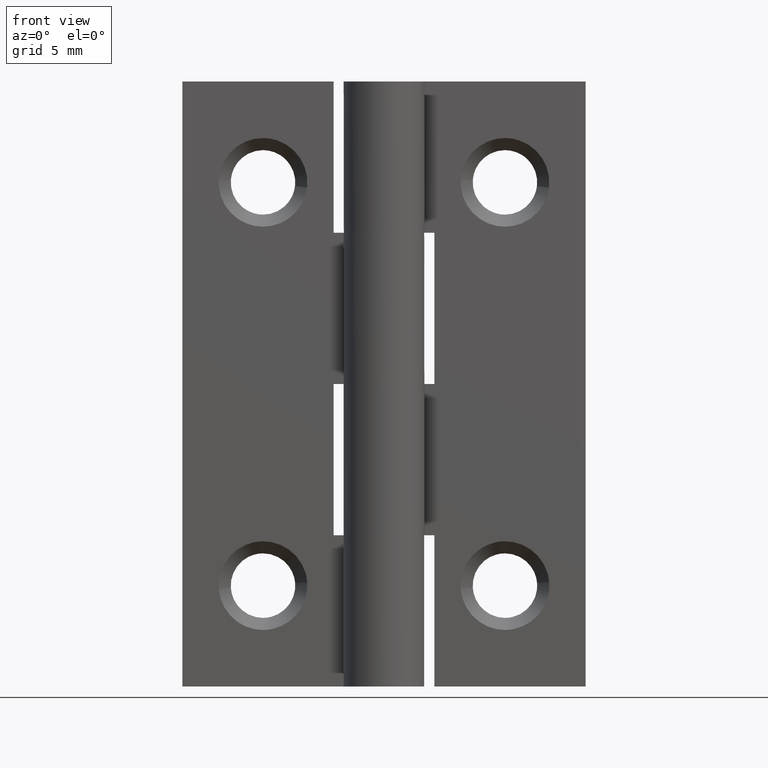
[diagram: clean part render]
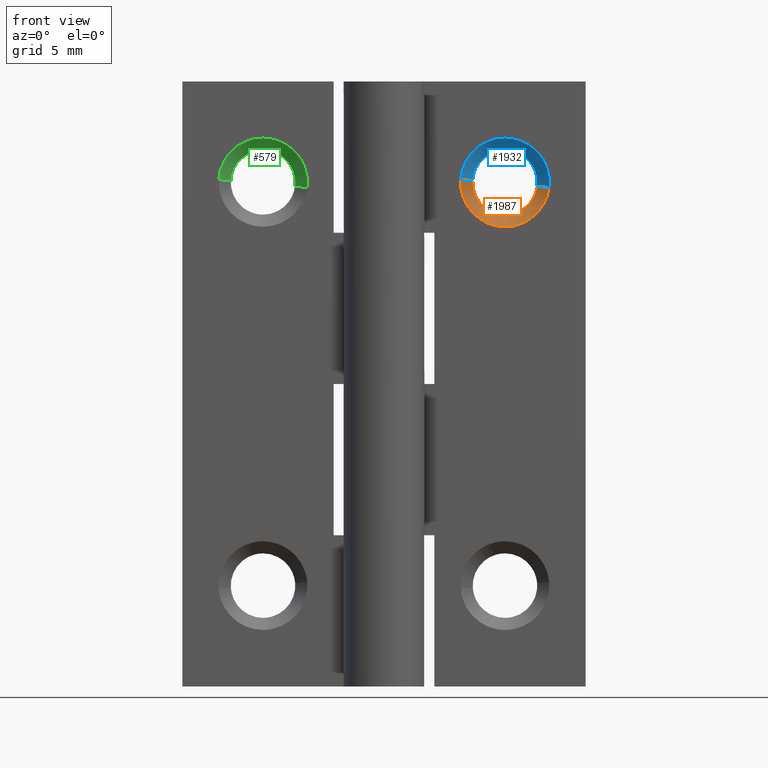
[diagram: same view with three faces highlighted in distinct colors, each labeled with its STEP entity id]
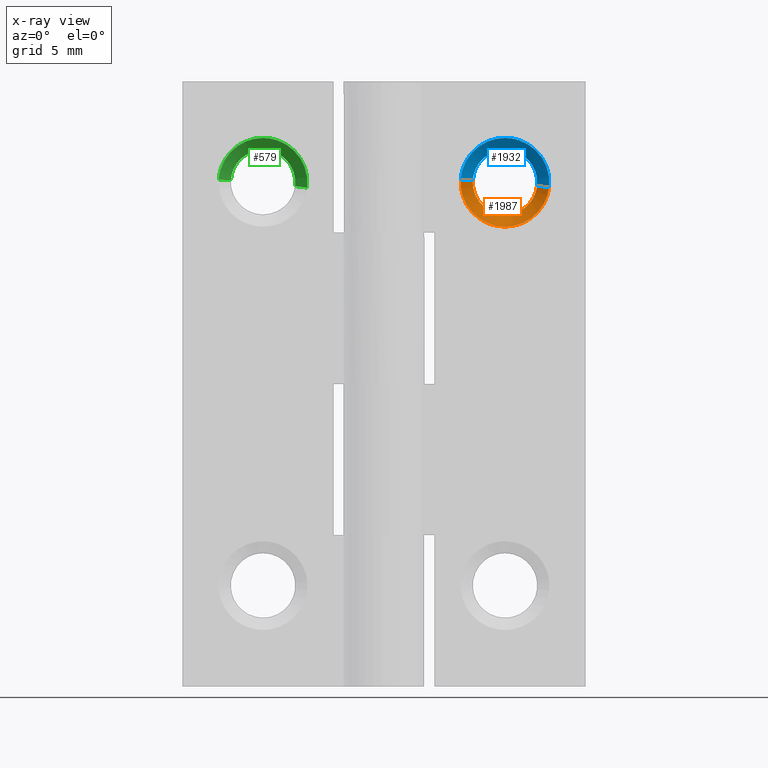
[diagram: x-ray of the same camera — body ghosted, the three highlighted faces saturated]
A machine part, front view with three faces highlighted in distinct colors.
The next image is the same camera in x-ray (body ghosted, the three faces saturated) — at least one of them is partly hidden behind the body in this view.
Their STEP definitions:

[orange] entity #1987 — the highlighted face is a freeform B-spline surface patch.
#1666=CARTESIAN_POINT('',(7.588815242672327,1.599999999344012,24.811145223117759));
#1667=VERTEX_POINT('',#1666);
#1733=CARTESIAN_POINT('',(4.402984322508551,1.599999999969432,25.097677663487360));
#1734=VERTEX_POINT('',#1733);
#1748=CARTESIAN_POINT('',(6.0,1.600000000000000,23.399999999999999));
#1749=VERTEX_POINT('',#1748);
#1750=CARTESIAN_POINT('',(4.402984322508551,1.599999999969432,25.097677663487360));
#1751=CARTESIAN_POINT('',(4.400000000000000,1.600000000000000,25.048884421508109));
#1752=CARTESIAN_POINT('',(4.400000000000000,1.600000000000000,25.0));
#1753=CARTESIAN_POINT('',(4.400000000000001,1.600000000000000,23.400000000000009));
#1754=CARTESIAN_POINT('',(6.0,1.600000000000000,23.399999999999999));
#1762=(BOUNDED_CURVE()B_SPLINE_CURVE(2,(#1750,#1751,#1752,#1753,#1754),.UNSPECIFIED.,.F.,.U.)B_SPLINE_CURVE_WITH_KNOTS((3,2,3),(0.739332962192328,0.750000000000000,1.0),.UNSPECIFIED.)CURVE()GEOMETRIC_REPRESENTATION_ITEM()RATIONAL_B_SPLINE_CURVE((0.976072041566813,0.987502787845225,1.0,0.707106781186548,1.0))REPRESENTATION_ITEM(''));
#1763=EDGE_CURVE('',#1734,#1749,#1762,.T.);
#1765=CARTESIAN_POINT('',(6.0,1.600000000000000,23.399999999999999));
#1766=CARTESIAN_POINT('',(7.421079239083023,1.600000000000000,23.399999999999995));
#1767=CARTESIAN_POINT('',(7.588815242672327,1.599999999344012,24.811145223117752));
#1775=(BOUNDED_CURVE()B_SPLINE_CURVE(2,(#1765,#1766,#1767),.UNSPECIFIED.,.F.,.U.)B_SPLINE_CURVE_WITH_KNOTS((3,3),(0.0,0.229562473227592),.UNSPECIFIED.)CURVE()GEOMETRIC_REPRESENTATION_ITEM()RATIONAL_B_SPLINE_CURVE((1.0,0.731050833190374,0.956026753623291))REPRESENTATION_ITEM(''));
#1776=EDGE_CURVE('',#1749,#1667,#1775,.T.);
#1883=CARTESIAN_POINT('',(8.184620958001080,0.999999999983829,24.740324683626660));
#1884=VERTEX_POINT('',#1883);
#1885=CARTESIAN_POINT('',(7.588815242672327,1.599999999344012,24.811145223117759));
#1886=CARTESIAN_POINT('',(8.184620958001080,0.999999999983829,24.740324683626660));
#1887=QUASI_UNIFORM_CURVE('',1,(#1885,#1886),.UNSPECIFIED.,.F.,.U.);
#1888=EDGE_CURVE('',#1667,#1884,#1887,.T.);
#1907=CARTESIAN_POINT('',(3.804103443461194,0.999999999980032,25.134306787128860));
#1908=VERTEX_POINT('',#1907);
#1922=CARTESIAN_POINT('',(4.402984322508551,1.599999999969432,25.097677663487360));
#1923=CARTESIAN_POINT('',(3.804103443461194,0.999999999980032,25.134306787128860));
#1924=QUASI_UNIFORM_CURVE('',1,(#1922,#1923),.UNSPECIFIED.,.F.,.U.);
#1925=EDGE_CURVE('',#1734,#1908,#1924,.T.);
#1933=CARTESIAN_POINT('',(4.417956344501339,1.615000000000000,25.096761935162750));
#1934=CARTESIAN_POINT('',(4.321194409338590,1.615000000000001,23.514718279664081));
#1935=CARTESIAN_POINT('',(5.903238064837251,1.615000000000000,23.417956344501341));
#1936=CARTESIAN_POINT('',(7.397246432980611,1.615000000000001,23.326578878178942));
#1937=CARTESIAN_POINT('',(7.573920099286415,1.615000000000001,24.812915738069041));
#1938=CARTESIAN_POINT('',(3.788757120946157,0.984625000000000,25.135245408272031));
#1939=CARTESIAN_POINT('',(3.653511712674124,0.984625000000000,22.924002529218193));
#1940=CARTESIAN_POINT('',(5.864754591727966,0.984625000000000,22.788757120946158));
#1941=CARTESIAN_POINT('',(7.952949411018559,0.984625000000000,22.661037654413676));
#1942=CARTESIAN_POINT('',(8.199888479467909,0.984625000000000,24.738509907397287));
#1950=(BOUNDED_SURFACE()B_SPLINE_SURFACE(2,1,((#1933,#1938),(#1934,#1939),(#1935,#1940),(#1936,#1941),(#1937,#1942)),.UNSPECIFIED.,.F.,.F.,.U.)B_SPLINE_SURFACE_WITH_KNOTS((3,2,3),(2,2),(0.0,3.670553482969185,7.194284826619603),(0.0,1.0),.UNSPECIFIED.)GEOMETRIC_REPRESENTATION_ITEM()RATIONAL_B_SPLINE_SURFACE(((1.0,1.0),(0.707106781186548,0.707106781186548),(1.0,1.0),(0.718822509939086,0.718822509939086),(0.977505800795127,0.977505800795127)))REPRESENTATION_ITEM('')SURFACE());
#1951=ORIENTED_EDGE('',*,*,#1776,.F.);
#1952=ORIENTED_EDGE('',*,*,#1763,.F.);
#1953=ORIENTED_EDGE('',*,*,#1925,.T.);
#1954=CARTESIAN_POINT('',(6.0,1.0,22.800000000000001));
#1955=VERTEX_POINT('',#1954);
#1956=CARTESIAN_POINT('',(3.804103443461195,0.999999999980032,25.134306787128860));
#1957=CARTESIAN_POINT('',(3.799999999999999,1.0,25.067216079408269));
#1958=CARTESIAN_POINT('',(3.800000000000000,1.0,25.0));
#1959=CARTESIAN_POINT('',(3.800000000000000,1.0,22.799999999999994));
#1960=CARTESIAN_POINT('',(6.0,1.0,22.800000000000001));
#1968=(BOUNDED_CURVE()B_SPLINE_CURVE(2,(#1956,#1957,#1958,#1959,#1960),.UNSPECIFIED.,.F.,.U.)B_SPLINE_CURVE_WITH_KNOTS((3,2,3),(0.739332962218246,0.750000000000000,1.0),.UNSPECIFIED.)CURVE()GEOMETRIC_REPRESENTATION_ITEM()RATIONAL_B_SPLINE_CURVE((0.976072041622361,0.987502787875590,1.0,0.707106781186548,1.0))REPRESENTATION_ITEM(''));
#1969=EDGE_CURVE('',#1908,#1955,#1968,.T.);
#1970=ORIENTED_EDGE('',*,*,#1969,.T.);
#1971=CARTESIAN_POINT('',(6.0,1.0,22.800000000000001));
#1972=CARTESIAN_POINT('',(7.953983956865011,1.0,22.800000000000004));
#1973=CARTESIAN_POINT('',(8.184620958001080,0.999999999983829,24.740324683626653));
#1981=(BOUNDED_CURVE()B_SPLINE_CURVE(2,(#1971,#1972,#1973),.UNSPECIFIED.,.F.,.U.)B_SPLINE_CURVE_WITH_KNOTS((3,3),(0.0,0.229562473496062),.UNSPECIFIED.)CURVE()GEOMETRIC_REPRESENTATION_ITEM()RATIONAL_B_SPLINE_CURVE((1.0,0.731050832875842,0.956026754149504))REPRESENTATION_ITEM(''));
#1982=EDGE_CURVE('',#1955,#1884,#1981,.T.);
#1983=ORIENTED_EDGE('',*,*,#1982,.T.);
#1984=ORIENTED_EDGE('',*,*,#1888,.F.);
#1985=EDGE_LOOP('',(#1951,#1952,#1953,#1970,#1983,#1984));
#1986=FACE_OUTER_BOUND('',#1985,.T.);
#1987=ADVANCED_FACE('',(#1986),#1950,.F.);

[blue] entity #1932 — the highlighted face is a freeform B-spline surface patch.
#1666=CARTESIAN_POINT('',(7.588815242672327,1.599999999344012,24.811145223117759));
#1667=VERTEX_POINT('',#1666);
#1668=CARTESIAN_POINT('',(6.860561269516678,1.600000000000000,26.348864078181279));
#1669=VERTEX_POINT('',#1668);
#1670=CARTESIAN_POINT('',(7.588815242672327,1.599999999344011,24.811145223117759));
#1671=CARTESIAN_POINT('',(7.600000000000001,1.600000000000000,24.905241407188630));
#1672=CARTESIAN_POINT('',(7.600000000000000,1.600000000000000,25.0));
#1673=CARTESIAN_POINT('',(7.600000000000000,1.600000000000000,25.877109849619291));
#1674=CARTESIAN_POINT('',(6.860561269516678,1.600000000000000,26.348864078181276));
#1682=(BOUNDED_CURVE()B_SPLINE_CURVE(2,(#1670,#1671,#1672,#1673,#1674),.UNSPECIFIED.,.F.,.U.)B_SPLINE_CURVE_WITH_KNOTS((3,2,3),(0.229562473227592,0.250000000000000,0.407950112626946),.UNSPECIFIED.)CURVE()GEOMETRIC_REPRESENTATION_ITEM()RATIONAL_B_SPLINE_CURVE((0.956026753623291,0.976055947996173,1.0,0.814949932402985,0.863729296954551))REPRESENTATION_ITEM(''));
#1683=EDGE_CURVE('',#1667,#1669,#1682,.T.);
#1726=CARTESIAN_POINT('',(4.404932266027167,1.600000000000000,25.125534553166741));
#1727=VERTEX_POINT('',#1726);
#1733=CARTESIAN_POINT('',(4.402984322508551,1.599999999969432,25.097677663487360));
#1734=VERTEX_POINT('',#1733);
#1735=CARTESIAN_POINT('',(4.404932266027167,1.600000000000000,25.125534553166734));
#1736=CARTESIAN_POINT('',(4.403836742596551,1.600000000000000,25.111614608164516));
#1737=CARTESIAN_POINT('',(4.402984322508552,1.599999999969433,25.097677663487364));
#1745=(BOUNDED_CURVE()B_SPLINE_CURVE(2,(#1735,#1736,#1737),.UNSPECIFIED.,.F.,.U.)B_SPLINE_CURVE_WITH_KNOTS((3,3),(0.736331300632297,0.739332962192329),.UNSPECIFIED.)CURVE()GEOMETRIC_REPRESENTATION_ITEM()RATIONAL_B_SPLINE_CURVE((0.969723356170835,0.972855475513050,0.976072041566814))REPRESENTATION_ITEM(''));
#1746=EDGE_CURVE('',#1727,#1734,#1745,.T.);
#1799=CARTESIAN_POINT('',(6.0,1.600000000000000,26.600000000000001));
#1800=VERTEX_POINT('',#1799);
#1801=CARTESIAN_POINT('',(6.860561269516677,1.600000000000001,26.348864078181283));
#1802=CARTESIAN_POINT('',(6.466924888610368,1.600000000000000,26.599999999999998));
#1803=CARTESIAN_POINT('',(6.0,1.600000000000000,26.600000000000001));
#1811=(BOUNDED_CURVE()B_SPLINE_CURVE(2,(#1801,#1802,#1803),.UNSPECIFIED.,.F.,.U.)B_SPLINE_CURVE_WITH_KNOTS((3,3),(0.407950112626947,0.500000000000000),.UNSPECIFIED.)CURVE()GEOMETRIC_REPRESENTATION_ITEM()RATIONAL_B_SPLINE_CURVE((0.863729296954551,0.892156848783562,1.0))REPRESENTATION_ITEM(''));
#1812=EDGE_CURVE('',#1669,#1800,#1811,.T.);
#1814=CARTESIAN_POINT('',(6.0,1.600000000000000,26.600000000000001));
#1815=CARTESIAN_POINT('',(4.520975213350931,1.600000000000001,26.600000000000001));
#1816=CARTESIAN_POINT('',(4.404932266027166,1.600000000000000,25.125534553166741));
#1824=(BOUNDED_CURVE()B_SPLINE_CURVE(2,(#1814,#1815,#1816),.UNSPECIFIED.,.F.,.U.)B_SPLINE_CURVE_WITH_KNOTS((3,3),(0.500000000000000,0.736331300632298),.UNSPECIFIED.)CURVE()GEOMETRIC_REPRESENTATION_ITEM()RATIONAL_B_SPLINE_CURVE((1.0,0.723120658605747,0.969723356170836))REPRESENTATION_ITEM(''));
#1825=EDGE_CURVE('',#1800,#1727,#1824,.T.);
#1860=CARTESIAN_POINT('',(7.573920099286415,1.615000000000001,24.812915738069041));
#1861=CARTESIAN_POINT('',(7.579274370486043,1.615000000000001,24.857960655108801));
#1862=CARTESIAN_POINT('',(7.582043655498661,1.615000000000000,24.903238064837250));
#1863=CARTESIAN_POINT('',(7.678805590661410,1.615000000000001,26.485281720335923));
#1864=CARTESIAN_POINT('',(6.096761935162749,1.615000000000000,26.582043655498659));
#1865=CARTESIAN_POINT('',(4.514718279664089,1.615000000000001,26.678805590661412));
#1866=CARTESIAN_POINT('',(4.417956344501339,1.615000000000000,25.096761935162750));
#1867=CARTESIAN_POINT('',(8.199888479467909,0.984625000000000,24.738509907397287));
#1868=CARTESIAN_POINT('',(8.207372213574455,0.984625000000000,24.801469770543644));
#1869=CARTESIAN_POINT('',(8.211242879053843,0.984625000000000,24.864754591727969));
#1870=CARTESIAN_POINT('',(8.346488287325878,0.984625000000000,27.075997470781811));
#1871=CARTESIAN_POINT('',(6.135245408272034,0.984625000000000,27.211242879053842));
#1872=CARTESIAN_POINT('',(3.924002529218190,0.984625000000000,27.346488287325869));
#1873=CARTESIAN_POINT('',(3.788757120946157,0.984625000000000,25.135245408272031));
#1881=(BOUNDED_SURFACE()B_SPLINE_SURFACE(2,1,((#1860,#1867),(#1861,#1868),(#1862,#1869),(#1863,#1870),(#1864,#1871),(#1865,#1872),(#1866,#1873)),.UNSPECIFIED.,.F.,.F.,.U.)B_SPLINE_SURFACE_WITH_KNOTS((3,2,2,3),(2,2),(0.0,0.146822139318768,3.817375622287953,7.487929105257138),(0.0,1.0),.UNSPECIFIED.)GEOMETRIC_REPRESENTATION_ITEM()RATIONAL_B_SPLINE_SURFACE(((0.977505800795127,0.977505800795127),(0.988284271247462,0.988284271247462),(1.0,1.0),(0.707106781186548,0.707106781186548),(1.0,1.0),(0.707106781186548,0.707106781186548),(1.0,1.0)))REPRESENTATION_ITEM('')SURFACE());
#1882=ORIENTED_EDGE('',*,*,#1683,.F.);
#1883=CARTESIAN_POINT('',(8.184620958001080,0.999999999983829,24.740324683626660));
#1884=VERTEX_POINT('',#1883);
#1885=CARTESIAN_POINT('',(7.588815242672327,1.599999999344012,24.811145223117759));
#1886=CARTESIAN_POINT('',(8.184620958001080,0.999999999983829,24.740324683626660));
#1887=QUASI_UNIFORM_CURVE('',1,(#1885,#1886),.UNSPECIFIED.,.F.,.U.);
#1888=EDGE_CURVE('',#1667,#1884,#1887,.T.);
#1889=ORIENTED_EDGE('',*,*,#1888,.T.);
#1890=CARTESIAN_POINT('',(6.0,1.0,27.199999999999999));
#1891=VERTEX_POINT('',#1890);
#1892=CARTESIAN_POINT('',(8.184620958001080,0.999999999983829,24.740324683626660));
#1893=CARTESIAN_POINT('',(8.200000000000001,1.0,24.869706936637900));
#1894=CARTESIAN_POINT('',(8.200000000000001,1.0,25.0));
#1895=CARTESIAN_POINT('',(8.200000000000001,1.0,27.200000000000010));
#1896=CARTESIAN_POINT('',(6.0,1.0,27.199999999999999));
#1904=(BOUNDED_CURVE()B_SPLINE_CURVE(2,(#1892,#1893,#1894,#1895,#1896),.UNSPECIFIED.,.F.,.U.)B_SPLINE_CURVE_WITH_KNOTS((3,2,3),(0.229562473496062,0.250000000000000,0.500000000000000),.UNSPECIFIED.)CURVE()GEOMETRIC_REPRESENTATION_ITEM()RATIONAL_B_SPLINE_CURVE((0.956026754149504,0.976055948310706,1.0,0.707106781186548,1.0))REPRESENTATION_ITEM(''));
#1905=EDGE_CURVE('',#1884,#1891,#1904,.T.);
#1906=ORIENTED_EDGE('',*,*,#1905,.T.);
#1907=CARTESIAN_POINT('',(3.804103443461194,0.999999999980032,25.134306787128860));
#1908=VERTEX_POINT('',#1907);
#1909=CARTESIAN_POINT('',(6.0,1.0,27.199999999999999));
#1910=CARTESIAN_POINT('',(3.930446653092531,1.0,27.200000000000003));
#1911=CARTESIAN_POINT('',(3.804103443461195,0.999999999980032,25.134306787128860));
#1919=(BOUNDED_CURVE()B_SPLINE_CURVE(2,(#1909,#1910,#1911),.UNSPECIFIED.,.F.,.U.)B_SPLINE_CURVE_WITH_KNOTS((3,3),(0.500000000000000,0.739332962218246),.UNSPECIFIED.)CURVE()GEOMETRIC_REPRESENTATION_ITEM()RATIONAL_B_SPLINE_CURVE((1.0,0.719603993310958,0.976072041622361))REPRESENTATION_ITEM(''));
#1920=EDGE_CURVE('',#1891,#1908,#1919,.T.);
#1921=ORIENTED_EDGE('',*,*,#1920,.T.);
#1922=CARTESIAN_POINT('',(4.402984322508551,1.599999999969432,25.097677663487360));
#1923=CARTESIAN_POINT('',(3.804103443461194,0.999999999980032,25.134306787128860));
#1924=QUASI_UNIFORM_CURVE('',1,(#1922,#1923),.UNSPECIFIED.,.F.,.U.);
#1925=EDGE_CURVE('',#1734,#1908,#1924,.T.);
#1926=ORIENTED_EDGE('',*,*,#1925,.F.);
#1927=ORIENTED_EDGE('',*,*,#1746,.F.);
#1928=ORIENTED_EDGE('',*,*,#1825,.F.);
#1929=ORIENTED_EDGE('',*,*,#1812,.F.);
#1930=EDGE_LOOP('',(#1882,#1889,#1906,#1921,#1926,#1927,#1928,#1929));
#1931=FACE_OUTER_BOUND('',#1930,.T.);
#1932=ADVANCED_FACE('',(#1931),#1881,.F.);

[green] entity #579 — the highlighted face is a freeform B-spline surface patch.
#313=CARTESIAN_POINT('',(-4.411184757327673,1.599999999344012,24.811145223117752));
#314=VERTEX_POINT('',#313);
#315=CARTESIAN_POINT('',(-5.139438730483322,1.600000000000000,26.348864078181279));
#316=VERTEX_POINT('',#315);
#317=CARTESIAN_POINT('',(-4.411184757327673,1.599999999344011,24.811145223117752));
#318=CARTESIAN_POINT('',(-4.400000000000001,1.600000000000000,24.905241407188630));
#319=CARTESIAN_POINT('',(-4.400000000000000,1.600000000000000,25.0));
#320=CARTESIAN_POINT('',(-4.400000000000000,1.600000000000000,25.877109849619291));
#321=CARTESIAN_POINT('',(-5.139438730483322,1.600000000000000,26.348864078181276));
#329=(BOUNDED_CURVE()B_SPLINE_CURVE(2,(#317,#318,#319,#320,#321),.UNSPECIFIED.,.F.,.U.)B_SPLINE_CURVE_WITH_KNOTS((3,2,3),(0.229562473227592,0.250000000000000,0.407950112626946),.UNSPECIFIED.)CURVE()GEOMETRIC_REPRESENTATION_ITEM()RATIONAL_B_SPLINE_CURVE((0.956026753623291,0.976055947996173,1.0,0.814949932402985,0.863729296954551))REPRESENTATION_ITEM(''));
#330=EDGE_CURVE('',#314,#316,#329,.T.);
#373=CARTESIAN_POINT('',(-7.595067733972831,1.600000000000000,25.125534553166741));
#374=VERTEX_POINT('',#373);
#380=CARTESIAN_POINT('',(-7.597015677491449,1.599999999969432,25.097677663487360));
#381=VERTEX_POINT('',#380);
#382=CARTESIAN_POINT('',(-7.595067733972831,1.600000000000000,25.125534553166734));
#383=CARTESIAN_POINT('',(-7.596163257403449,1.600000000000000,25.111614608164516));
#384=CARTESIAN_POINT('',(-7.597015677491450,1.599999999969433,25.097677663487364));
#392=(BOUNDED_CURVE()B_SPLINE_CURVE(2,(#382,#383,#384),.UNSPECIFIED.,.F.,.U.)B_SPLINE_CURVE_WITH_KNOTS((3,3),(0.736331300632297,0.739332962192329),.UNSPECIFIED.)CURVE()GEOMETRIC_REPRESENTATION_ITEM()RATIONAL_B_SPLINE_CURVE((0.969723356170835,0.972855475513050,0.976072041566814))REPRESENTATION_ITEM(''));
#393=EDGE_CURVE('',#374,#381,#392,.T.);
#446=CARTESIAN_POINT('',(-6.0,1.600000000000000,26.600000000000001));
#447=VERTEX_POINT('',#446);
#448=CARTESIAN_POINT('',(-5.139438730483323,1.600000000000001,26.348864078181283));
#449=CARTESIAN_POINT('',(-5.533075111389632,1.600000000000000,26.600000000000001));
#450=CARTESIAN_POINT('',(-6.0,1.600000000000000,26.600000000000001));
#458=(BOUNDED_CURVE()B_SPLINE_CURVE(2,(#448,#449,#450),.UNSPECIFIED.,.F.,.U.)B_SPLINE_CURVE_WITH_KNOTS((3,3),(0.407950112626947,0.500000000000000),.UNSPECIFIED.)CURVE()GEOMETRIC_REPRESENTATION_ITEM()RATIONAL_B_SPLINE_CURVE((0.863729296954551,0.892156848783562,1.0))REPRESENTATION_ITEM(''));
#459=EDGE_CURVE('',#316,#447,#458,.T.);
#461=CARTESIAN_POINT('',(-6.0,1.600000000000000,26.600000000000001));
#462=CARTESIAN_POINT('',(-7.479024786649069,1.600000000000001,26.600000000000001));
#463=CARTESIAN_POINT('',(-7.595067733972831,1.600000000000000,25.125534553166741));
#471=(BOUNDED_CURVE()B_SPLINE_CURVE(2,(#461,#462,#463),.UNSPECIFIED.,.F.,.U.)B_SPLINE_CURVE_WITH_KNOTS((3,3),(0.500000000000000,0.736331300632298),.UNSPECIFIED.)CURVE()GEOMETRIC_REPRESENTATION_ITEM()RATIONAL_B_SPLINE_CURVE((1.0,0.723120658605747,0.969723356170836))REPRESENTATION_ITEM(''));
#472=EDGE_CURVE('',#447,#374,#471,.T.);
#507=CARTESIAN_POINT('',(-4.426079900713586,1.615000000000001,24.812915738069041));
#508=CARTESIAN_POINT('',(-4.420725629513957,1.615000000000001,24.857960655108801));
#509=CARTESIAN_POINT('',(-4.417956344501339,1.615000000000000,24.903238064837250));
#510=CARTESIAN_POINT('',(-4.321194409338590,1.615000000000001,26.485281720335923));
#511=CARTESIAN_POINT('',(-5.903238064837251,1.615000000000000,26.582043655498659));
#512=CARTESIAN_POINT('',(-7.485281720335912,1.615000000000001,26.678805590661412));
#513=CARTESIAN_POINT('',(-7.582043655498661,1.615000000000000,25.096761935162750));
#514=CARTESIAN_POINT('',(-3.800111520532093,0.984625000000000,24.738509907397287));
#515=CARTESIAN_POINT('',(-3.792627786425546,0.984625000000000,24.801469770543644));
#516=CARTESIAN_POINT('',(-3.788757120946157,0.984625000000000,24.864754591727969));
#517=CARTESIAN_POINT('',(-3.653511712674124,0.984625000000000,27.075997470781811));
#518=CARTESIAN_POINT('',(-5.864754591727966,0.984625000000000,27.211242879053842));
#519=CARTESIAN_POINT('',(-8.075997470781809,0.984625000000000,27.346488287325869));
#520=CARTESIAN_POINT('',(-8.211242879053843,0.984625000000000,25.135245408272031));
#528=(BOUNDED_SURFACE()B_SPLINE_SURFACE(2,1,((#507,#514),(#508,#515),(#509,#516),(#510,#517),(#511,#518),(#512,#519),(#513,#520)),.UNSPECIFIED.,.F.,.F.,.U.)B_SPLINE_SURFACE_WITH_KNOTS((3,2,2,3),(2,2),(0.0,0.146822139318768,3.817375622287953,7.487929105257138),(0.0,1.0),.UNSPECIFIED.)GEOMETRIC_REPRESENTATION_ITEM()RATIONAL_B_SPLINE_SURFACE(((0.977505800795127,0.977505800795127),(0.988284271247462,0.988284271247462),(1.0,1.0),(0.707106781186548,0.707106781186548),(1.0,1.0),(0.707106781186548,0.707106781186548),(1.0,1.0)))REPRESENTATION_ITEM('')SURFACE());
#529=ORIENTED_EDGE('',*,*,#330,.F.);
#530=CARTESIAN_POINT('',(-3.815379041998920,0.999999999983829,24.740324683626660));
#531=VERTEX_POINT('',#530);
#532=CARTESIAN_POINT('',(-4.411184757327673,1.599999999344012,24.811145223117752));
#533=CARTESIAN_POINT('',(-3.815379041998920,0.999999999983829,24.740324683626660));
#534=QUASI_UNIFORM_CURVE('',1,(#532,#533),.UNSPECIFIED.,.F.,.U.);
#535=EDGE_CURVE('',#314,#531,#534,.T.);
#536=ORIENTED_EDGE('',*,*,#535,.T.);
#537=CARTESIAN_POINT('',(-6.0,1.0,27.199999999999999));
#538=VERTEX_POINT('',#537);
#539=CARTESIAN_POINT('',(-3.815379041998920,0.999999999983829,24.740324683626664));
#540=CARTESIAN_POINT('',(-3.800000000000000,1.0,24.869706936637900));
#541=CARTESIAN_POINT('',(-3.800000000000000,1.0,25.0));
#542=CARTESIAN_POINT('',(-3.800000000000000,1.0,27.200000000000010));
#543=CARTESIAN_POINT('',(-6.0,1.0,27.199999999999999));
#551=(BOUNDED_CURVE()B_SPLINE_CURVE(2,(#539,#540,#541,#542,#543),.UNSPECIFIED.,.F.,.U.)B_SPLINE_CURVE_WITH_KNOTS((3,2,3),(0.229562473496062,0.250000000000000,0.500000000000000),.UNSPECIFIED.)CURVE()GEOMETRIC_REPRESENTATION_ITEM()RATIONAL_B_SPLINE_CURVE((0.956026754149504,0.976055948310706,1.0,0.707106781186548,1.0))REPRESENTATION_ITEM(''));
#552=EDGE_CURVE('',#531,#538,#551,.T.);
#553=ORIENTED_EDGE('',*,*,#552,.T.);
#554=CARTESIAN_POINT('',(-8.195896556538806,0.999999999980032,25.134306787128850));
#555=VERTEX_POINT('',#554);
#556=CARTESIAN_POINT('',(-6.0,1.0,27.199999999999999));
#557=CARTESIAN_POINT('',(-8.069553346907471,1.0,27.200000000000003));
#558=CARTESIAN_POINT('',(-8.195896556538806,0.999999999980032,25.134306787128850));
#566=(BOUNDED_CURVE()B_SPLINE_CURVE(2,(#556,#557,#558),.UNSPECIFIED.,.F.,.U.)B_SPLINE_CURVE_WITH_KNOTS((3,3),(0.500000000000000,0.739332962218246),.UNSPECIFIED.)CURVE()GEOMETRIC_REPRESENTATION_ITEM()RATIONAL_B_SPLINE_CURVE((1.0,0.719603993310958,0.976072041622361))REPRESENTATION_ITEM(''));
#567=EDGE_CURVE('',#538,#555,#566,.T.);
#568=ORIENTED_EDGE('',*,*,#567,.T.);
#569=CARTESIAN_POINT('',(-7.597015677491449,1.599999999969432,25.097677663487360));
#570=CARTESIAN_POINT('',(-8.195896556538806,0.999999999980032,25.134306787128850));
#571=QUASI_UNIFORM_CURVE('',1,(#569,#570),.UNSPECIFIED.,.F.,.U.);
#572=EDGE_CURVE('',#381,#555,#571,.T.);
#573=ORIENTED_EDGE('',*,*,#572,.F.);
#574=ORIENTED_EDGE('',*,*,#393,.F.);
#575=ORIENTED_EDGE('',*,*,#472,.F.);
#576=ORIENTED_EDGE('',*,*,#459,.F.);
#577=EDGE_LOOP('',(#529,#536,#553,#568,#573,#574,#575,#576));
#578=FACE_OUTER_BOUND('',#577,.T.);
#579=ADVANCED_FACE('',(#578),#528,.F.);